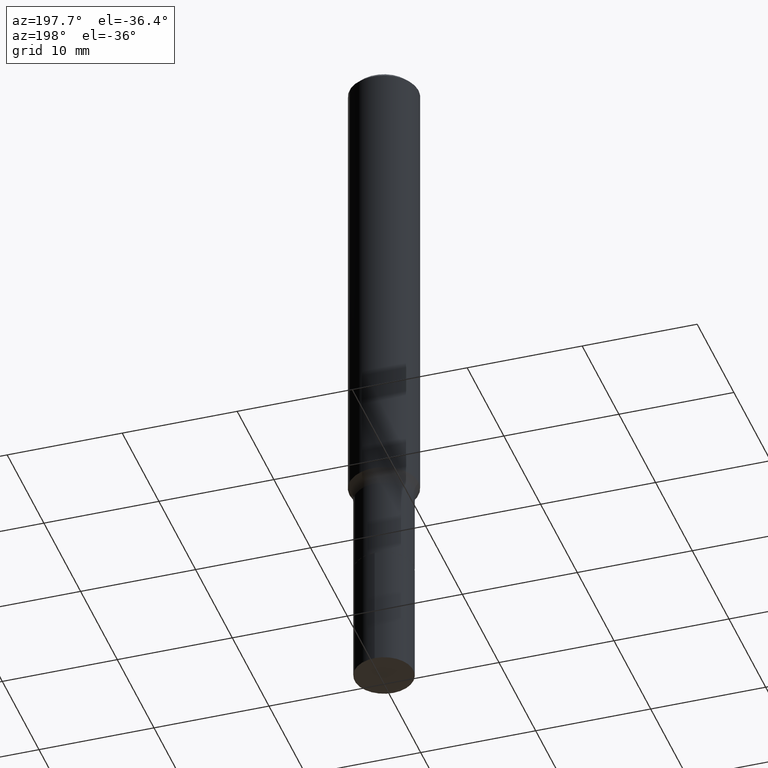
[diagram: clean part render]
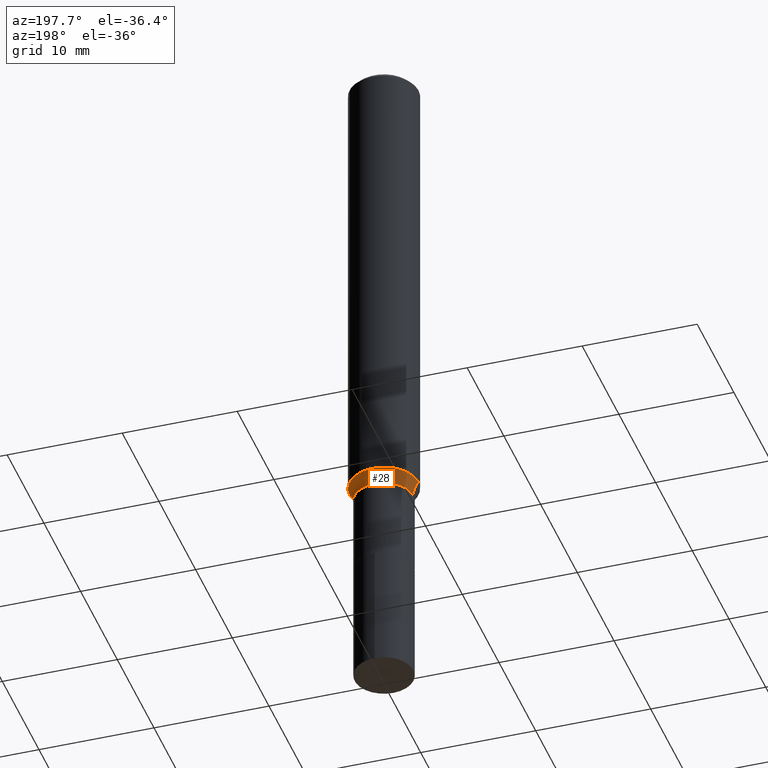
[diagram: same view with one face highlighted and labeled with its STEP entity id]
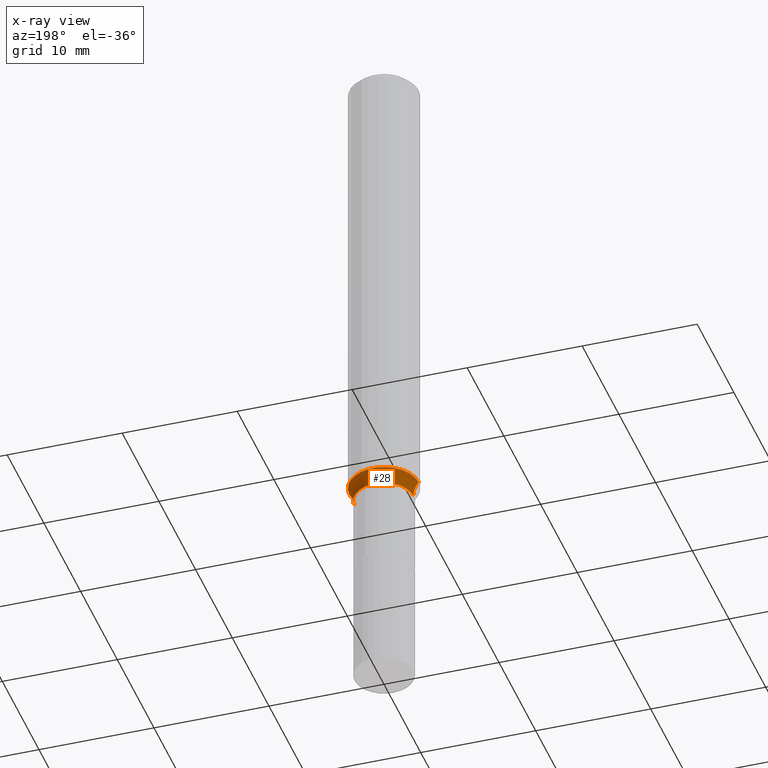
[diagram: x-ray of the same camera — body ghosted, the highlighted face saturated]
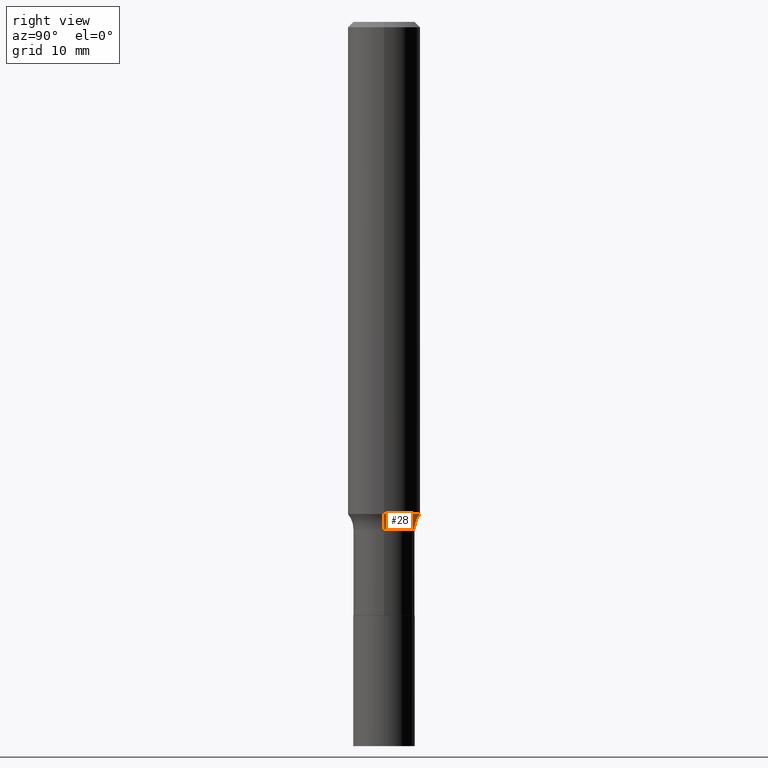
[diagram: same view with one face highlighted and labeled with its STEP entity id]
A machine part, auxiliary view. The second image highlights one B-rep face of the part: STEP entity #28.
The next image is the same camera in x-ray: the body ghosted, the highlighted face saturated — about 0% of this face is hidden behind the body in this view.
A second angle (right view) of the same face is appended — the face is thin or edge-on in the first view.
In plain terms, the highlighted toroidal blend (fillet) surface has major radius 4.5822 mm and minor (blend) radius 2.032 mm.
Its self-contained STEP definition (entity closure, byte-faithful):
#28 = ADVANCED_FACE ( 'NONE', ( #198 ), #170, .F. ) ;
#37 = AXIS2_PLACEMENT_3D ( 'NONE', #277, #386, #451 ) ;
#56 = CARTESIAN_POINT ( 'NONE',  ( 4.047495421117020390E-29, -5.778750763919291461E-15, -1.655100000000000238 ) ) ;
#60 = DIRECTION ( 'NONE',  ( 1.000000000000000000, -6.982962677686268288E-15, 0.000000000000000000 ) ) ;
#62 = AXIS2_PLACEMENT_3D ( 'NONE', #197, #327, #255 ) ;
#64 = AXIS2_PLACEMENT_3D ( 'NONE', #56, #240, #132 ) ;
#86 = VERTEX_POINT ( 'NONE', #126 ) ;
#106 = DIRECTION ( 'NONE',  ( 7.105427357601001859E-15, 1.000000000000000000, -3.491481338843145583E-15 ) ) ;
#114 = EDGE_LOOP ( 'NONE', ( #278, #242, #413, #330 ) ) ;
#125 = EDGE_CURVE ( 'NONE', #450, #181, #218, .T. ) ;
#126 = CARTESIAN_POINT ( 'NONE',  ( -0.1003999999999999754, -5.555220689055844179E-15, -1.655100000000000238 ) ) ;
#132 = DIRECTION ( 'NONE',  ( 1.000000000000000000, -6.982962677686264344E-15, 0.000000000000000000 ) ) ;
#139 = CARTESIAN_POINT ( 'NONE',  ( -0.1803999999999999770, -4.496931668608071480E-15, -1.655100000000000238 ) ) ;
#170 = TOROIDAL_SURFACE ( 'NONE', #62, 0.1803999999999999770, 0.07999999999999996003 ) ;
#171 = AXIS2_PLACEMENT_3D ( 'NONE', #178, #314, #60 ) ;
#174 = VERTEX_POINT ( 'NONE', #209 ) ;
#178 = CARTESIAN_POINT ( 'NONE',  ( 3.924765286476451324E-29, -5.603524658508559788E-15, -1.604913248760255540 ) ) ;
#181 = VERTEX_POINT ( 'NONE', #339 ) ;
#182 = CARTESIAN_POINT ( 'NONE',  ( 0.1181000000000002048, -6.428212550743309629E-15, -1.604913248760255540 ) ) ;
#193 = EDGE_CURVE ( 'NONE', #181, #86, #326, .T. ) ;
#197 = CARTESIAN_POINT ( 'NONE',  ( 4.047495421117020390E-29, -5.778750763919291461E-15, -1.655100000000000238 ) ) ;
#198 = FACE_OUTER_BOUND ( 'NONE', #114, .T. ) ;
#209 = CARTESIAN_POINT ( 'NONE',  ( -0.1181000000000002048, -4.764373687575879225E-15, -1.604913248760255540 ) ) ;
#218 = CIRCLE ( 'NONE', #37, 0.07999999999999996003 ) ;
#240 = DIRECTION ( 'NONE',  ( -2.445468806185136597E-29, 3.491481338843145583E-15, 1.000000000000000000 ) ) ;
#242 = ORIENTED_EDGE ( 'NONE', *, *, #247, .F. ) ;
#247 = EDGE_CURVE ( 'NONE', #450, #174, #343, .T. ) ;
#255 = DIRECTION ( 'NONE',  ( 1.000000000000000000, -6.982962677686266711E-15, 4.883557194083112901E-29 ) ) ;
#277 = CARTESIAN_POINT ( 'NONE',  ( 0.1803999999999999770, -7.038477230973894190E-15, -1.655100000000000238 ) ) ;
#278 = ORIENTED_EDGE ( 'NONE', *, *, #298, .F. ) ;
#298 = EDGE_CURVE ( 'NONE', #174, #86, #364, .T. ) ;
#314 = DIRECTION ( 'NONE',  ( -2.445468806185136597E-29, 3.491481338843145583E-15, 1.000000000000000000 ) ) ;
#326 = CIRCLE ( 'NONE', #64, 0.1003999999999999754 ) ;
#327 = DIRECTION ( 'NONE',  ( -2.445468806185136597E-29, 3.491481338843145583E-15, 1.000000000000000000 ) ) ;
#330 = ORIENTED_EDGE ( 'NONE', *, *, #193, .T. ) ;
#339 = CARTESIAN_POINT ( 'NONE',  ( 0.1003999999999999754, -6.479840216758992537E-15, -1.655100000000000238 ) ) ;
#343 = CIRCLE ( 'NONE', #171, 0.1181000000000002048 ) ;
#364 = CIRCLE ( 'NONE', #425, 0.07999999999999996003 ) ;
#386 = DIRECTION ( 'NONE',  ( -6.982962677686266711E-15, -1.000000000000000000, 3.491481338843145583E-15 ) ) ;
#387 = DIRECTION ( 'NONE',  ( -1.000000000000000000, 7.105427357601001859E-15, 0.000000000000000000 ) ) ;
#413 = ORIENTED_EDGE ( 'NONE', *, *, #125, .T. ) ;
#425 = AXIS2_PLACEMENT_3D ( 'NONE', #139, #106, #387 ) ;
#450 = VERTEX_POINT ( 'NONE', #182 ) ;
#451 = DIRECTION ( 'NONE',  ( 1.000000000000000000, -6.982962677686262766E-15, 0.000000000000000000 ) ) ;